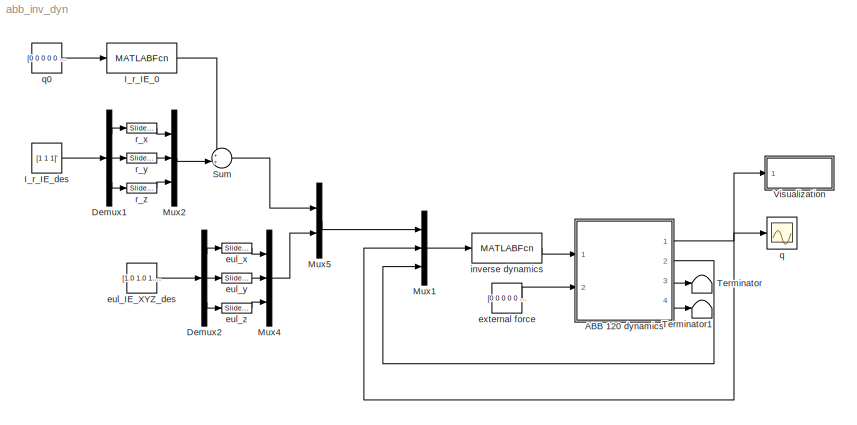
MODEL abb_inv_dyn
KIND model
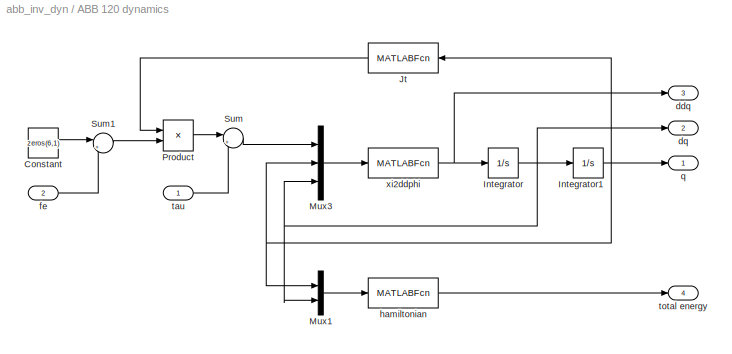
BLOCK [SubSystem] ABB 120 dynamics
  Ports = [2, 4]
  RequestExecContextInheritance = off
  SID = 180
  Variant = off
BLOCK [Constant] ABB 120 dynamics/Constant
  SID = 183
  Value = zeros(6,1)
BLOCK [Integrator] ABB 120 dynamics/Integrator
  InitialCondition = dphi0
  Ports = [1, 1]
  SID = 184
BLOCK [Integrator] ABB 120 dynamics/Integrator1
  InitialCondition = phi0
  Ports = [1, 1]
  SID = 185
BLOCK [MATLABFcn] ABB 120 dynamics/Jt
  MATLABFcn = I_Je_fun(u(1:6))'
  Output1D = off
  OutputDimensions = [6,6]
  OutputSignalType = real
  Ports = [1, 1]
  SID = 186
BLOCK [Mux] ABB 120 dynamics/Mux1
  DisplayOption = bar
  Inputs = 2
  Ports = [2, 1]
  SID = 187
BLOCK [Mux] ABB 120 dynamics/Mux3
  DisplayOption = bar
  Inputs = 3
  Ports = [3, 1]
  SID = 188
BLOCK [Product] ABB 120 dynamics/Product
  InputSameDT = off
  Multiplication = Matrix(*)
  OutDataTypeStr = Inherit: Inherit via internal rule
  Ports = [2, 1]
  RndMeth = Floor
  SID = 189
  SaturateOnIntegerOverflow = off
BLOCK [Sum] ABB 120 dynamics/Sum
  IconShape = round
  InputSameDT = off
  Inputs = |++
  OutDataTypeStr = Inherit: Inherit via internal rule
  Ports = [2, 1]
  SID = 190
  SaturateOnIntegerOverflow = off
BLOCK [Sum] ABB 120 dynamics/Sum1
  IconShape = round
  InputSameDT = off
  Inputs = |++
  OutDataTypeStr = Inherit: Inherit via internal rule
  Ports = [2, 1]
  SID = 191
  SaturateOnIntegerOverflow = off
BLOCK [Outport] ABB 120 dynamics/ddq
  IconDisplay = Port number
  Port = 3
  SID = 196
BLOCK [Outport] ABB 120 dynamics/dq
  IconDisplay = Port number
  Port = 2
  SID = 195
BLOCK [Inport] ABB 120 dynamics/fe
  IconDisplay = Port number
  Port = 2
  SID = 182
BLOCK [MATLABFcn] ABB 120 dynamics/hamiltonian
  MATLABFcn = hamiltonian_fun(u(1:6), u(7:12))
  Output1D = off
  OutputDimensions = [1,1]
  Ports = [1, 1]
  SID = 192
BLOCK [Outport] ABB 120 dynamics/q
  IconDisplay = Port number
  SID = 194
BLOCK [Inport] ABB 120 dynamics/tau
  IconDisplay = Port number
  SID = 181
BLOCK [Outport] ABB 120 dynamics/total energy
  IconDisplay = Port number
  Port = 4
  SID = 197
BLOCK [MATLABFcn] ABB 120 dynamics/xi2ddphi
  MATLABFcn = abb_eom(u(1:6), u(7:12), u(13:18),F,enable_g,enable_f)
  Output1D = off
  OutputDimensions = [6,1]
  Ports = [1, 1]
  SID = 193
BLOCK [Demux] Demux1
  DisplayOption = bar
  Outputs = 3
  Ports = [1, 3]
  SID = 225
BLOCK [Demux] Demux2
  DisplayOption = bar
  Outputs = 3
  Ports = [1, 3]
  SID = 235
BLOCK [MATLABFcn] I_r_IE_0
  MATLABFcn = I_r_IE_fun(u)
  Output1D = off
  OutputDimensions = [3,1]
  Ports = [1, 1]
  SID = 242
BLOCK [Constant] I_r_IE_des
  SID = 224
  Value = [1 1 1]'
BLOCK [Mux] Mux1
  DisplayOption = bar
  Inputs = 3
  Ports = [3, 1]
  SID = 200
BLOCK [Mux] Mux2
  DisplayOption = bar
  Inputs = 3
  Ports = [3, 1]
  SID = 226
BLOCK [Mux] Mux4
  DisplayOption = bar
  Inputs = 3
  Ports = [3, 1]
  SID = 236
BLOCK [Mux] Mux5
  DisplayOption = bar
  Inputs = 2
  Ports = [2, 1]
  SID = 240
BLOCK [Sum] Sum
  IconShape = round
  InputSameDT = off
  Inputs = ++|
  OutDataTypeStr = Inherit: Inherit via internal rule
  Ports = [2, 1]
  SID = 241
  SaturateOnIntegerOverflow = off
BLOCK [Terminator] Terminator
  SID = 202
BLOCK [Terminator] Terminator1
  SID = 203
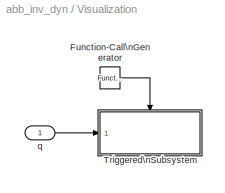
BLOCK [SubSystem] Visualization
  Ports = [1]
  RequestExecContextInheritance = off
  SID = 204
  Variant = off
BLOCK [Reference] Visualization/Function-Call\nGenerator  REF=simulink/Ports &\nSubsystems/Function-Call\nGenerator
  Ports = [0, 1]
  SID = 206
  SourceBlock = simulink/Ports &\nSubsystems/Function-Call\nGenerator
  SourceType = Function-Call Generator
  numberOfIterations = 1
  sample_time = 0.05
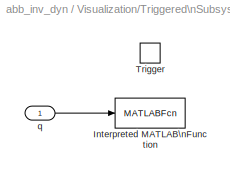
BLOCK [SubSystem] Visualization/Triggered\nSubsystem
  Ports = [1, 0, 0, 1]
  RequestExecContextInheritance = off
  SID = 207
  TreatAsAtomicUnit = on
  Variant = off
BLOCK [MATLABFcn] Visualization/Triggered\nSubsystem/Interpreted MATLAB\nFunction
  MATLABFcn = abbRobot.setJointPositions(u)
  OutputDimensions = 0
  Ports = [1]
  SID = 210
BLOCK [TriggerPort] Visualization/Triggered\nSubsystem/Trigger
  Ports = []
  SID = 209
  StatesWhenEnabling = held
  TriggerType = function-call
  VariantControl = Variant
BLOCK [Inport] Visualization/Triggered\nSubsystem/q
  IconDisplay = Port number
  SID = 208
BLOCK [Inport] Visualization/q
  IconDisplay = Port number
  SID = 205
BLOCK [Constant] eul_IE_XYZ_des
  SID = 234
  Value = [1.0 1.0 1.0]'
BLOCK [Reference] eul_x  REF=simulink/Math\nOperations/Slider\nGain
  Ports = [1, 1]
  SID = 237
  SourceBlock = simulink/Math\nOperations/Slider\nGain
  SourceType = Slider Gain
  gain = 0
  high = 2
  low = -2
BLOCK [Reference] eul_y  REF=simulink/Math\nOperations/Slider\nGain
  Ports = [1, 1]
  SID = 238
  SourceBlock = simulink/Math\nOperations/Slider\nGain
  SourceType = Slider Gain
  gain = 0
  high = 2
  low = -2
BLOCK [Reference] eul_z  REF=simulink/Math\nOperations/Slider\nGain
  Ports = [1, 1]
  SID = 239
  SourceBlock = simulink/Math\nOperations/Slider\nGain
  SourceType = Slider Gain
  gain = 0
  high = 2
  low = -2
BLOCK [Constant] external force
  SID = 211
  Value = [0 0 0 0 0 0]'
BLOCK [MATLABFcn] inverse dynamics
  MATLABFcn = control_inv_dyn( u(1:3), u(4:6), u(7:12), u(13:18))
  Output1D = off
  OutputDimensions = [6,1]
  Ports = [1, 1]
  SID = 221
BLOCK [Scope] q
  NumInputPorts = 1
  Ports = [1]
  SID = 212
  ScopeSpecificationString = Simulink.scopes.TimeScopeBlockCfg('CurrentConfiguration', extmgr.ConfigurationSet(extmgr.Configuration('Core','General UI',true,'FigureColor',[0.156862745098039 0.156862745098039 0.156862745098039]),extmgr.Configuration('Core','Source UI',true),extmgr.Configuration('Sources','WiredSimulink',true,'DataLoggingSaveFormat','StructureWithTime','DataLoggingDecimation','1','DataLoggingDecimateData',true,...<+2862ch>
BLOCK [Constant] q0
  SID = 243
  Value = [0 0 0 0 0 0]'
BLOCK [Reference] r_x  REF=simulink/Math\nOperations/Slider\nGain
  Ports = [1, 1]
  SID = 228
  SourceBlock = simulink/Math\nOperations/Slider\nGain
  SourceType = Slider Gain
  gain = 0
  high = 2
  low = -2
BLOCK [Reference] r_y  REF=simulink/Math\nOperations/Slider\nGain
  Ports = [1, 1]
  SID = 229
  SourceBlock = simulink/Math\nOperations/Slider\nGain
  SourceType = Slider Gain
  gain = 0
  high = 2
  low = -2
BLOCK [Reference] r_z  REF=simulink/Math\nOperations/Slider\nGain
  Ports = [1, 1]
  SID = 230
  SourceBlock = simulink/Math\nOperations/Slider\nGain
  SourceType = Slider Gain
  gain = 0
  high = 2
  low = -2
LINE ABB 120 dynamics/Constant:1 -> ABB 120 dynamics/Sum1:1
NET ABB 120 dynamics/Integrator1:1 -> ABB 120 dynamics/Jt:1, ABB 120 dynamics/Mux1:1, ABB 120 dynamics/Mux3:2, ABB 120 dynamics/q:1
NET ABB 120 dynamics/Integrator:1 -> ABB 120 dynamics/Integrator1:1, ABB 120 dynamics/Mux1:2, ABB 120 dynamics/Mux3:3, ABB 120 dynamics/dq:1
LINE ABB 120 dynamics/Jt:1 -> ABB 120 dynamics/Product:1
LINE ABB 120 dynamics/Mux1:1 -> ABB 120 dynamics/hamiltonian:1
LINE ABB 120 dynamics/Mux3:1 -> ABB 120 dynamics/xi2ddphi:1
LINE ABB 120 dynamics/Product:1 -> ABB 120 dynamics/Sum:1
LINE ABB 120 dynamics/Sum1:1 -> ABB 120 dynamics/Product:2
LINE ABB 120 dynamics/Sum:1 -> ABB 120 dynamics/Mux3:1
LINE ABB 120 dynamics/fe:1 -> ABB 120 dynamics/Sum1:2
LINE ABB 120 dynamics/hamiltonian:1 -> ABB 120 dynamics/total energy:1
LINE ABB 120 dynamics/tau:1 -> ABB 120 dynamics/Sum:2
NET ABB 120 dynamics/xi2ddphi:1 -> ABB 120 dynamics/Integrator:1, ABB 120 dynamics/ddq:1
NET ABB 120 dynamics:1 -> Mux1:2, Visualization:1, q:1
LINE ABB 120 dynamics:2 -> Mux1:3
LINE ABB 120 dynamics:3 -> Terminator:1
LINE ABB 120 dynamics:4 -> Terminator1:1
LINE Demux1:1 -> r_x:1
LINE Demux1:2 -> r_y:1
LINE Demux1:3 -> r_z:1
LINE Demux2:1 -> eul_x:1
LINE Demux2:2 -> eul_y:1
LINE Demux2:3 -> eul_z:1
LINE I_r_IE_0:1 -> Sum:1
LINE I_r_IE_des:1 -> Demux1:1
LINE Mux1:1 -> inverse dynamics:1
LINE Mux2:1 -> Sum:2
LINE Mux4:1 -> Mux5:2
LINE Mux5:1 -> Mux1:1
LINE Sum:1 -> Mux5:1
LINE Visualization/Function-Call\nGenerator:1 -> Visualization/Triggered\nSubsystem:trigger
LINE Visualization/Triggered\nSubsystem/q:1 -> Visualization/Triggered\nSubsystem/Interpreted MATLAB\nFunction:1
LINE Visualization/q:1 -> Visualization/Triggered\nSubsystem:1
LINE eul_IE_XYZ_des:1 -> Demux2:1
LINE eul_x:1 -> Mux4:1
LINE eul_y:1 -> Mux4:2
LINE eul_z:1 -> Mux4:3
LINE external force:1 -> ABB 120 dynamics:2
LINE inverse dynamics:1 -> ABB 120 dynamics:1
LINE q0:1 -> I_r_IE_0:1
LINE r_x:1 -> Mux2:1
LINE r_y:1 -> Mux2:2
LINE r_z:1 -> Mux2:3
note: NET lines group one-source signal fan-out (src -> all destinations, sorted); 1:1 wires keep LINE
